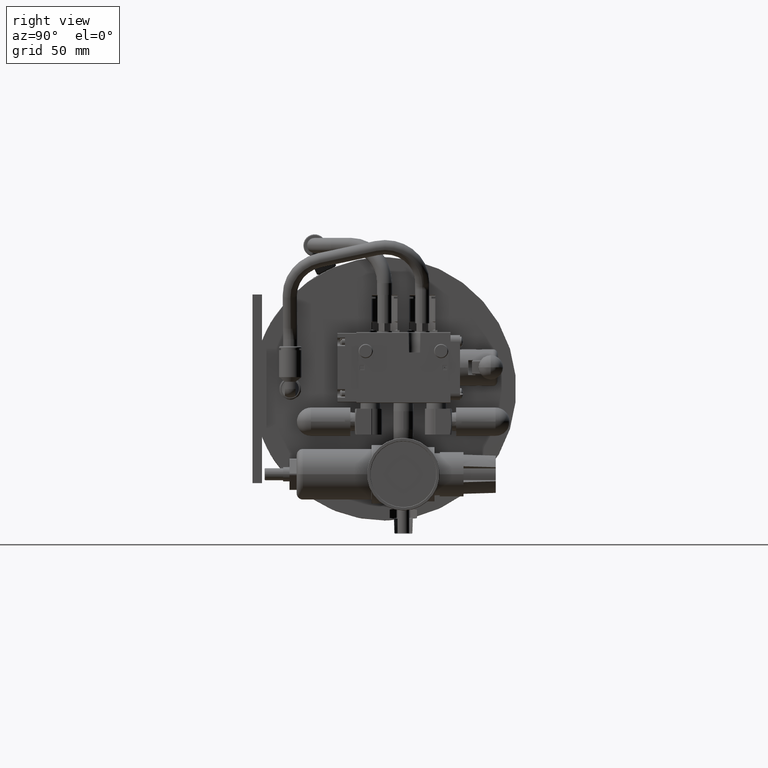
[diagram: clean part render]
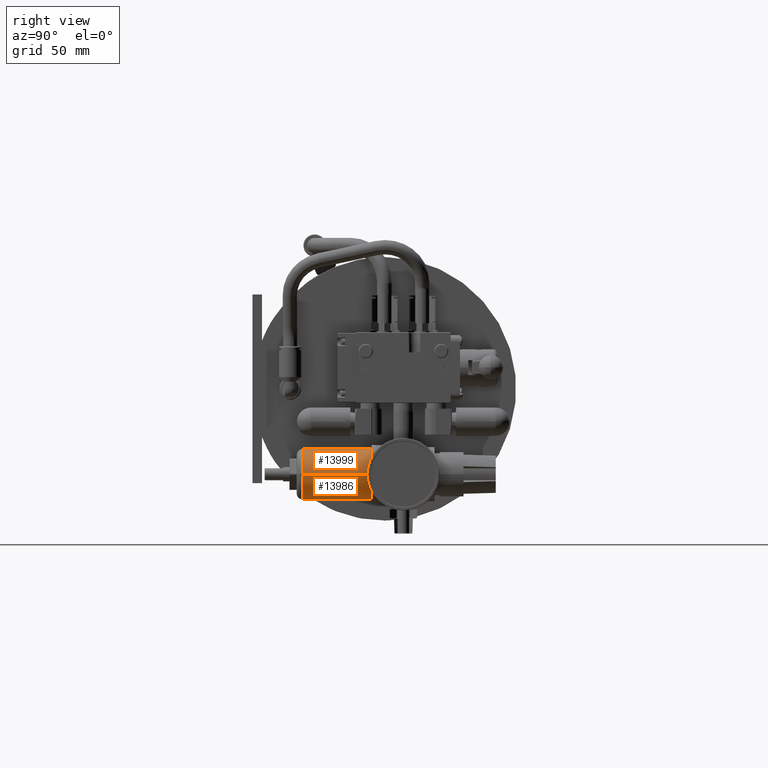
[diagram: same view with one multi-face feature highlighted, each face labeled with its STEP entity id]
A machine part, right view. The highlighted faces form ONE feature: a constant-radius fillet chain: 2 tangent blend faces with common blend radius 17.145 mm. The faces share edges in the B-rep.
Their STEP definitions:
[1] entity #13999 (Cylinder):
#12163=CARTESIAN_POINT('',(1.782204E2,3.3909E1,-1.210285E2));
#12164=DIRECTION('',(0.E0,1.E0,0.E0));
#12165=DIRECTION('',(-1.E0,0.E0,2.055580034628E-13));
#12166=AXIS2_PLACEMENT_3D('',#12163,#12164,#12165);
#12183=DIRECTION('',(2.897595156784E-14,1.E0,-1.177533350948E-13));
#12184=VECTOR('',#12183,4.6101E1);
#12185=CARTESIAN_POINT('',(1.610754E2,3.3909E1,-1.210285E2));
#12186=LINE('',#12185,#12184);
#12187=DIRECTION('',(2.959246117567E-14,-1.E0,6.658303764525E-14));
#12188=VECTOR('',#12187,4.6101E1);
#12189=CARTESIAN_POINT('',(1.953654E2,8.001E1,-1.210285E2));
#12190=LINE('',#12189,#12188);
#12206=CARTESIAN_POINT('',(1.782204E2,8.001E1,-1.210285E2));
#12207=DIRECTION('',(0.E0,1.E0,0.E0));
#12208=DIRECTION('',(-1.E0,0.E0,-7.410034479668E-13));
#12209=AXIS2_PLACEMENT_3D('',#12206,#12207,#12208);
#13405=CARTESIAN_POINT('',(1.610754E2,3.3909E1,-1.210285E2));
#13406=VERTEX_POINT('',#13405);
#13407=CARTESIAN_POINT('',(1.953654E2,3.3909E1,-1.210285E2));
#13408=VERTEX_POINT('',#13407);
#13409=CARTESIAN_POINT('',(1.610754E2,8.001E1,-1.210285E2));
#13410=VERTEX_POINT('',#13409);
#13411=CARTESIAN_POINT('',(1.953654E2,8.001E1,-1.210285E2));
#13412=VERTEX_POINT('',#13411);
#13987=CARTESIAN_POINT('',(1.782204E2,8.093202E1,-1.210285E2));
#13988=DIRECTION('',(0.E0,-1.E0,0.E0));
#13989=DIRECTION('',(1.E0,0.E0,0.E0));
#13990=AXIS2_PLACEMENT_3D('',#13987,#13988,#13989);
#13991=CYLINDRICAL_SURFACE('',#13990,1.7145E1);
#13992=ORIENTED_EDGE('',*,*,#13977,.T.);
#13994=ORIENTED_EDGE('',*,*,#13993,.T.);
#13995=ORIENTED_EDGE('',*,*,#13980,.T.);
#13996=ORIENTED_EDGE('',*,*,#13951,.F.);
#13997=EDGE_LOOP('',(#13992,#13994,#13995,#13996));
#13998=FACE_OUTER_BOUND('',#13997,.F.);
#13999=ADVANCED_FACE('',(#13998),#13991,.T.);
#12167=CIRCLE('',#12166,1.7145E1);
#12210=CIRCLE('',#12209,1.7145E1);
#13951=EDGE_CURVE('',#13406,#13408,#12167,.T.);
#13977=EDGE_CURVE('',#13406,#13410,#12186,.T.);
#13980=EDGE_CURVE('',#13412,#13408,#12190,.T.);
#13993=EDGE_CURVE('',#13410,#13412,#12210,.T.);
[2] entity #13986 (Cylinder):
#12178=CARTESIAN_POINT('',(1.782204E2,3.3909E1,-1.210285E2));
#12179=DIRECTION('',(0.E0,1.E0,0.E0));
#12180=DIRECTION('',(1.E0,0.E0,0.E0));
#12181=AXIS2_PLACEMENT_3D('',#12178,#12179,#12180);
#12183=DIRECTION('',(2.897595156784E-14,1.E0,-1.177533350948E-13));
#12184=VECTOR('',#12183,4.6101E1);
#12185=CARTESIAN_POINT('',(1.610754E2,3.3909E1,-1.210285E2));
#12186=LINE('',#12185,#12184);
#12187=DIRECTION('',(2.959246117567E-14,-1.E0,6.658303764525E-14));
#12188=VECTOR('',#12187,4.6101E1);
#12189=CARTESIAN_POINT('',(1.953654E2,8.001E1,-1.210285E2));
#12190=LINE('',#12189,#12188);
#12201=CARTESIAN_POINT('',(1.782204E2,8.001E1,-1.210285E2));
#12202=DIRECTION('',(0.E0,1.E0,0.E0));
#12203=DIRECTION('',(1.E0,0.E0,-7.410034479668E-13));
#12204=AXIS2_PLACEMENT_3D('',#12201,#12202,#12203);
#13405=CARTESIAN_POINT('',(1.610754E2,3.3909E1,-1.210285E2));
#13406=VERTEX_POINT('',#13405);
#13407=CARTESIAN_POINT('',(1.953654E2,3.3909E1,-1.210285E2));
#13408=VERTEX_POINT('',#13407);
#13409=CARTESIAN_POINT('',(1.610754E2,8.001E1,-1.210285E2));
#13410=VERTEX_POINT('',#13409);
#13411=CARTESIAN_POINT('',(1.953654E2,8.001E1,-1.210285E2));
#13412=VERTEX_POINT('',#13411);
#13972=CARTESIAN_POINT('',(1.782204E2,8.093202E1,-1.210285E2));
#13973=DIRECTION('',(0.E0,-1.E0,0.E0));
#13974=DIRECTION('',(1.E0,0.E0,0.E0));
#13975=AXIS2_PLACEMENT_3D('',#13972,#13973,#13974);
#13976=CYLINDRICAL_SURFACE('',#13975,1.7145E1);
#13978=ORIENTED_EDGE('',*,*,#13977,.F.);
#13979=ORIENTED_EDGE('',*,*,#13967,.F.);
#13981=ORIENTED_EDGE('',*,*,#13980,.F.);
#13983=ORIENTED_EDGE('',*,*,#13982,.T.);
#13984=EDGE_LOOP('',(#13978,#13979,#13981,#13983));
#13985=FACE_OUTER_BOUND('',#13984,.F.);
#13986=ADVANCED_FACE('',(#13985),#13976,.T.);
#12182=CIRCLE('',#12181,1.7145E1);
#12205=CIRCLE('',#12204,1.7145E1);
#13967=EDGE_CURVE('',#13408,#13406,#12182,.T.);
#13977=EDGE_CURVE('',#13406,#13410,#12186,.T.);
#13980=EDGE_CURVE('',#13412,#13408,#12190,.T.);
#13982=EDGE_CURVE('',#13412,#13410,#12205,.T.);